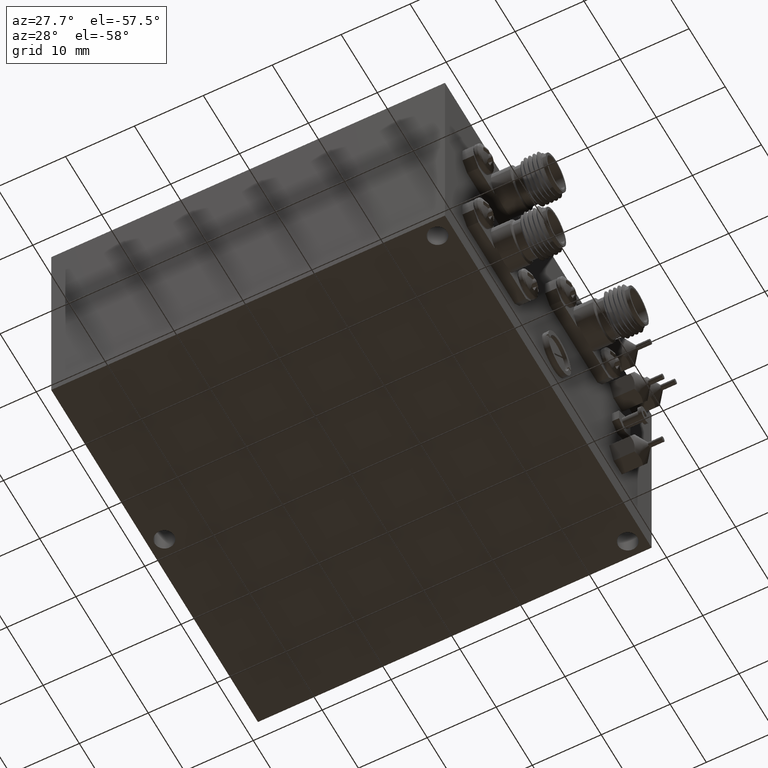
[diagram: clean part render]
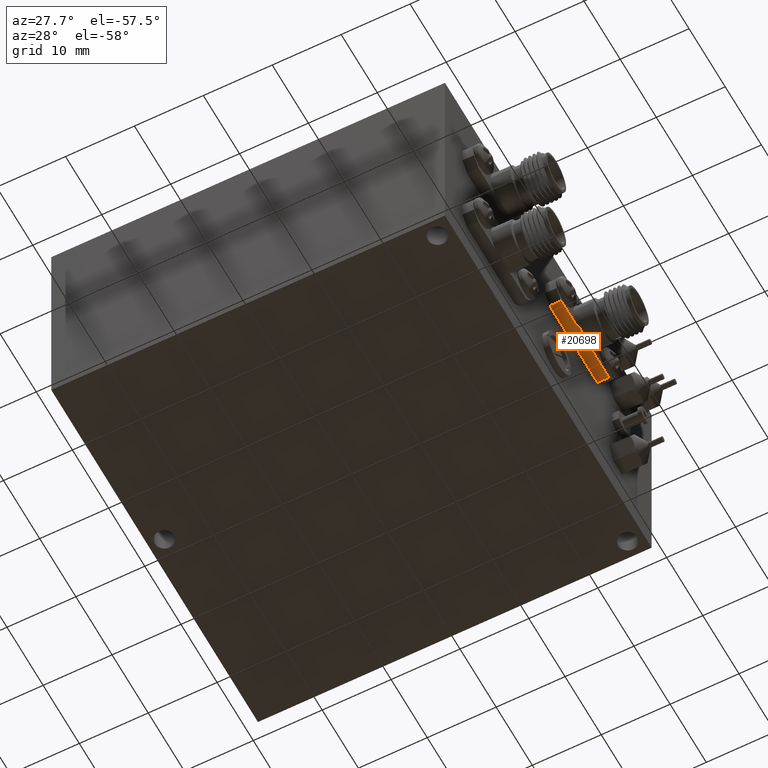
[diagram: same view with one face highlighted and labeled with its STEP entity id]
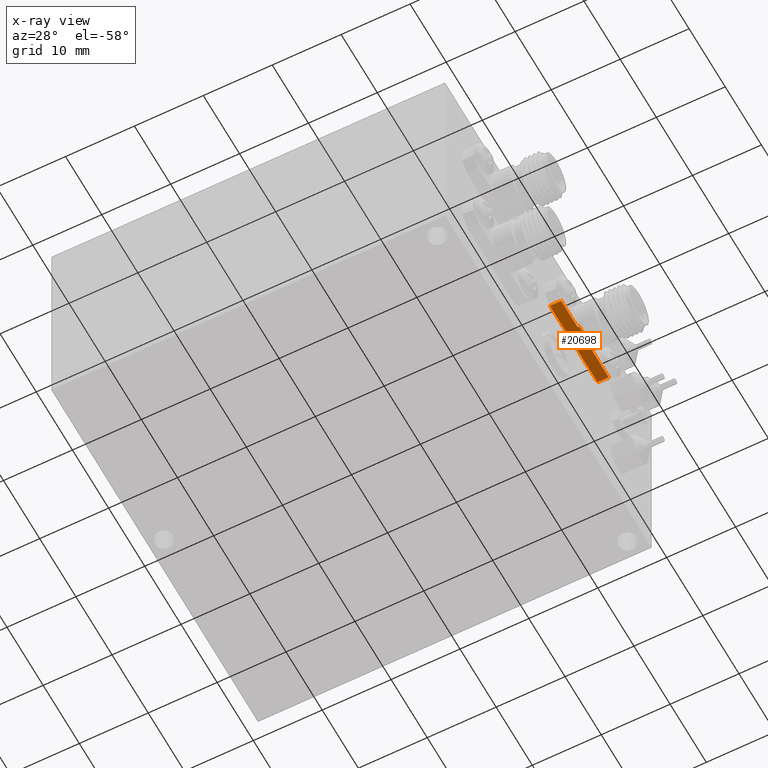
[diagram: x-ray of the same camera — body ghosted, the highlighted face saturated]
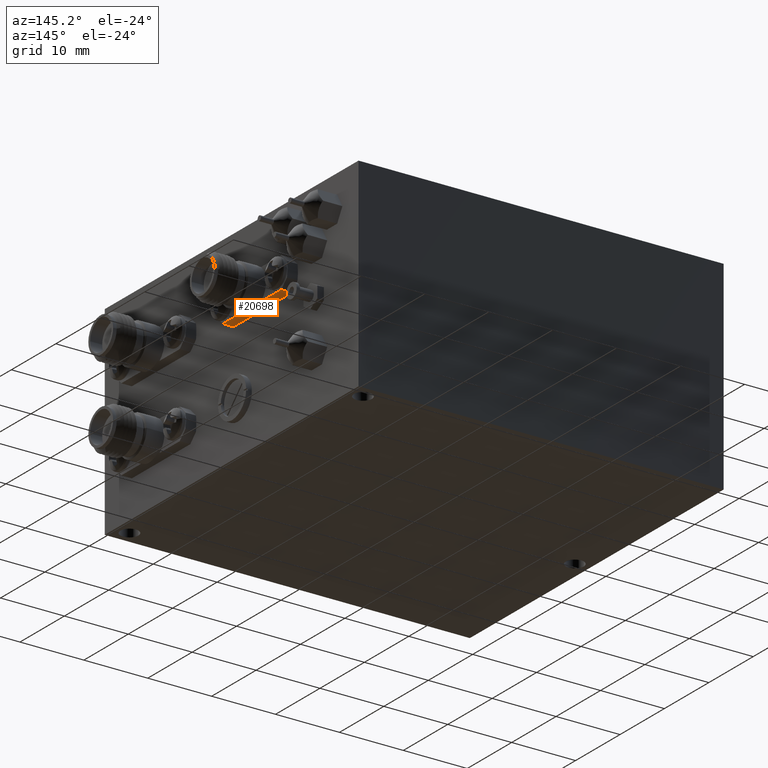
[diagram: same view with one face highlighted and labeled with its STEP entity id]
A machine part, auxiliary view. The second image highlights one B-rep face of the part: STEP entity #20698.
The next image is the same camera in x-ray: the body ghosted, the highlighted face saturated — about 0% of this face is hidden behind the body in this view.
A second angle (auxiliary view) of the same face is appended — the face is thin or edge-on in the first view.
In plain terms, the highlighted planar face has unit normal (-0, -0, 1).
Its self-contained STEP definition (entity closure, byte-faithful):
#366 = VERTEX_POINT ( 'NONE', #17144 ) ;
#1001 = DIRECTION ( 'NONE',  ( -2.775557561562889900E-016, 1.000000000000000000, -1.232595164407828500E-032 ) ) ;
#1990 = LINE ( 'NONE', #24779, #37545 ) ;
#2295 = ORIENTED_EDGE ( 'NONE', *, *, #10608, .T. ) ;
#3049 = LINE ( 'NONE', #37023, #5920 ) ;
#4160 = ORIENTED_EDGE ( 'NONE', *, *, #10385, .T. ) ;
#4418 = ORIENTED_EDGE ( 'NONE', *, *, #33777, .F. ) ;
#4748 = VERTEX_POINT ( 'NONE', #25545 ) ;
#5920 = VECTOR ( 'NONE', #21615, 39.37007874015748100 ) ;
#6038 = CARTESIAN_POINT ( 'NONE',  ( 1.190000000000000600, 0.3546931615635866600, 0.7349999999999997600 ) ) ;
#6055 = EDGE_CURVE ( 'NONE', #31556, #24532, #1990, .T. ) ;
#6156 = ORIENTED_EDGE ( 'NONE', *, *, #17945, .F. ) ;
#6591 = ORIENTED_EDGE ( 'NONE', *, *, #29720, .T. ) ;
#7307 = PLANE ( 'NONE',  #12551 ) ;
#8119 = VERTEX_POINT ( 'NONE', #21134 ) ;
#8402 = VERTEX_POINT ( 'NONE', #31249 ) ;
#8474 = CARTESIAN_POINT ( 'NONE',  ( 1.190000000000000600, 0.01575697259275056800, 0.7349999999999997600 ) ) ;
#9591 = DIRECTION ( 'NONE',  ( 1.000000000000000000, 0.0000000000000000000, -8.474091755303835000E-033 ) ) ;
#10385 = EDGE_CURVE ( 'NONE', #366, #31556, #17814, .T. ) ;
#10608 = EDGE_CURVE ( 'NONE', #4748, #8119, #12535, .T. ) ;
#10897 = VECTOR ( 'NONE', #35095, 39.37007874015748100 ) ;
#12535 = LINE ( 'NONE', #23991, #30074 ) ;
#12551 = AXIS2_PLACEMENT_3D ( 'NONE', #13321, #31479, #34522 ) ;
#12712 = LINE ( 'NONE', #8474, #35420 ) ;
#13321 = CARTESIAN_POINT ( 'NONE',  ( 1.190000000000000600, -0.02271000990897318100, 0.7349999999999997600 ) ) ;
#16356 = ORIENTED_EDGE ( 'NONE', *, *, #32859, .F. ) ;
#16702 = DIRECTION ( 'NONE',  ( -2.775557561562889900E-016, 1.000000000000000000, -1.232595164407828500E-032 ) ) ;
#17144 = CARTESIAN_POINT ( 'NONE',  ( 1.125000000000000000, 0.01575697259275056800, 0.7349999999999996500 ) ) ;
#17337 = EDGE_CURVE ( 'NONE', #30165, #24532, #31824, .T. ) ;
#17814 = LINE ( 'NONE', #21652, #28188 ) ;
#17945 = EDGE_CURVE ( 'NONE', #8402, #8119, #24260, .T. ) ;
#18852 = CARTESIAN_POINT ( 'NONE',  ( 1.200000000000000600, 0.3546931615635867700, 0.7349999999999997600 ) ) ;
#19558 = CARTESIAN_POINT ( 'NONE',  ( 1.200000000000000600, 0.3546931615635867700, 0.7349999999999997600 ) ) ;
#20698 = ADVANCED_FACE ( 'NONE', ( #26758 ), #7307, .F. ) ;
#21134 = CARTESIAN_POINT ( 'NONE',  ( 1.190000000000000600, 0.1953068384364124200, 0.7349999999999999900 ) ) ;
#21615 = DIRECTION ( 'NONE',  ( -1.000000000000000000, 0.0000000000000000000, 8.474091755303835000E-033 ) ) ;
#21652 = CARTESIAN_POINT ( 'NONE',  ( 1.125000000000000200, -0.02271000990897318100, 0.7349999999999997600 ) ) ;
#22056 = VECTOR ( 'NONE', #1001, 39.37007874015748100 ) ;
#23991 = CARTESIAN_POINT ( 'NONE',  ( 1.200000000000000600, 0.1953068384364122800, 0.7349999999999999900 ) ) ;
#24260 = LINE ( 'NONE', #26128, #10897 ) ;
#24532 = VERTEX_POINT ( 'NONE', #35970 ) ;
#24779 = CARTESIAN_POINT ( 'NONE',  ( 1.190000000000000600, 0.5342430274072480500, 0.7349999999999999900 ) ) ;
#25545 = CARTESIAN_POINT ( 'NONE',  ( 1.200000000000000600, 0.1953068384364122800, 0.7349999999999999900 ) ) ;
#26128 = CARTESIAN_POINT ( 'NONE',  ( 1.190000000000000600, -0.02271000990897318100, 0.7349999999999997600 ) ) ;
#26235 = DIRECTION ( 'NONE',  ( -2.775557561562889900E-016, 1.000000000000000000, -1.232595164407828500E-032 ) ) ;
#26758 = FACE_OUTER_BOUND ( 'NONE', #34337, .T. ) ;
#27155 = DIRECTION ( 'NONE',  ( -1.000000000000000000, 0.0000000000000000000, 8.474091755303835000E-033 ) ) ;
#28188 = VECTOR ( 'NONE', #16702, 39.37007874015748100 ) ;
#29458 = VERTEX_POINT ( 'NONE', #19558 ) ;
#29720 = EDGE_CURVE ( 'NONE', #8402, #366, #12712, .T. ) ;
#30074 = VECTOR ( 'NONE', #27155, 39.37007874015748100 ) ;
#30165 = VERTEX_POINT ( 'NONE', #6038 ) ;
#31025 = LINE ( 'NONE', #18852, #22056 ) ;
#31249 = CARTESIAN_POINT ( 'NONE',  ( 1.190000000000000600, 0.01575697259275056800, 0.7349999999999997600 ) ) ;
#31430 = ORIENTED_EDGE ( 'NONE', *, *, #17337, .F. ) ;
#31479 = DIRECTION ( 'NONE',  ( -1.110223024625164400E-016, -1.848892746611769100E-032, 1.000000000000000000 ) ) ;
#31556 = VERTEX_POINT ( 'NONE', #37422 ) ;
#31824 = LINE ( 'NONE', #32328, #35597 ) ;
#32328 = CARTESIAN_POINT ( 'NONE',  ( 1.190000000000000600, -0.02271000990897318100, 0.7349999999999997600 ) ) ;
#32859 = EDGE_CURVE ( 'NONE', #29458, #30165, #3049, .T. ) ;
#32912 = DIRECTION ( 'NONE',  ( -1.000000000000000000, 0.0000000000000000000, 8.474091755303835000E-033 ) ) ;
#33777 = EDGE_CURVE ( 'NONE', #4748, #29458, #31025, .T. ) ;
#34337 = EDGE_LOOP ( 'NONE', ( #6156, #6591, #4160, #36059, #31430, #16356, #4418, #2295 ) ) ;
#34522 = DIRECTION ( 'NONE',  ( 2.775557561562889900E-016, -1.000000000000000000, 1.232595164407828500E-032 ) ) ;
#35095 = DIRECTION ( 'NONE',  ( -2.775557561562889900E-016, 1.000000000000000000, -1.232595164407828500E-032 ) ) ;
#35420 = VECTOR ( 'NONE', #32912, 39.37007874015748100 ) ;
#35597 = VECTOR ( 'NONE', #26235, 39.37007874015748100 ) ;
#35970 = CARTESIAN_POINT ( 'NONE',  ( 1.190000000000000600, 0.5342430274072481600, 0.7349999999999999900 ) ) ;
#36059 = ORIENTED_EDGE ( 'NONE', *, *, #6055, .T. ) ;
#37023 = CARTESIAN_POINT ( 'NONE',  ( 1.200000000000000600, 0.3546931615635867700, 0.7349999999999997600 ) ) ;
#37422 = CARTESIAN_POINT ( 'NONE',  ( 1.125000000000000700, 0.5342430274072480500, 0.7349999999999997600 ) ) ;
#37545 = VECTOR ( 'NONE', #9591, 39.37007874015748100 ) ;